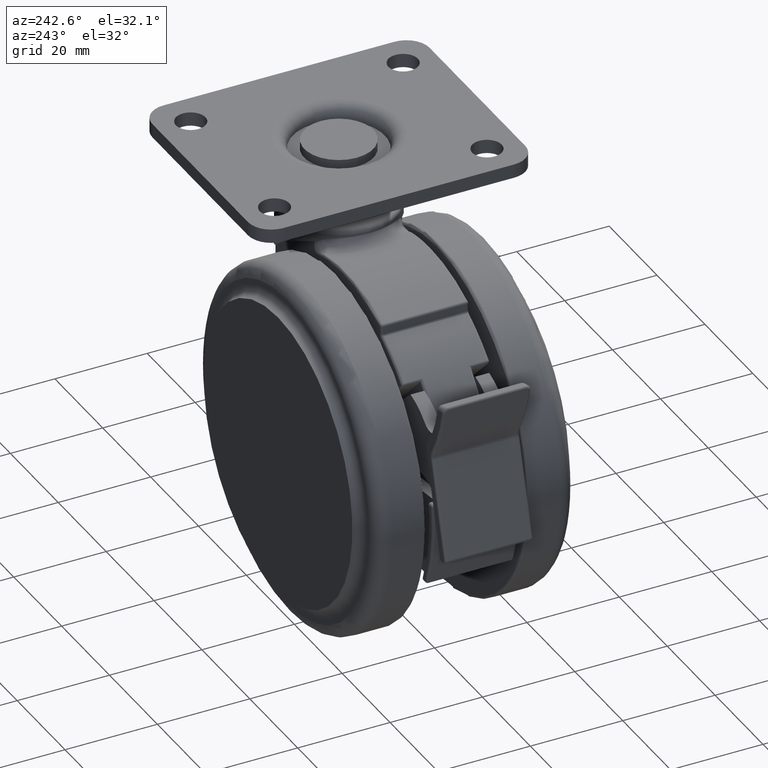
[diagram: clean part render]
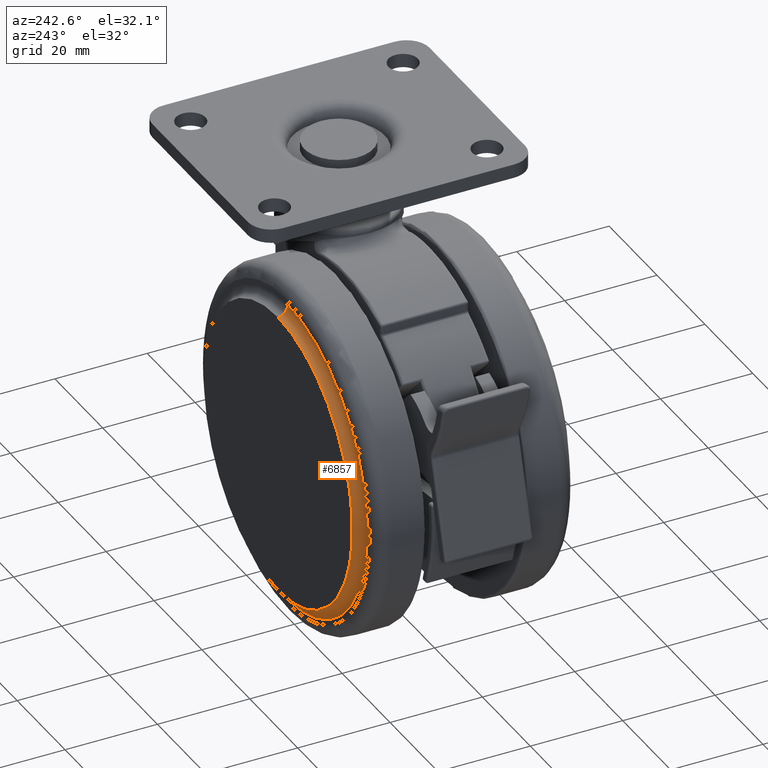
[diagram: same view with one face highlighted and labeled with its STEP entity id]
A machine part, auxiliary view. The second image highlights one B-rep face of the part: STEP entity #6857.
In plain terms, the highlighted toroidal blend (fillet) surface has major radius 33.1916 mm and minor (blend) radius 2.2 mm.
Its self-contained STEP definition (entity closure, byte-faithful):
#445 = VERTEX_POINT ( 'NONE', #6307 ) ;
#514 = DIRECTION ( 'NONE',  ( 1.577021341797096800E-015, 1.000000000000000000, 0.0000000000000000000 ) ) ;
#601 = CARTESIAN_POINT ( 'NONE',  ( -20.00000000000000400, 23.50000000000000000, -9.500000000000001800 ) ) ;
#997 = AXIS2_PLACEMENT_3D ( 'NONE', #2719, #4157, #9071 ) ;
#1126 = ORIENTED_EDGE ( 'NONE', *, *, #1548, .F. ) ;
#1421 = AXIS2_PLACEMENT_3D ( 'NONE', #1949, #6849, #2657 ) ;
#1548 = EDGE_CURVE ( 'NONE', #8712, #445, #3423, .T. ) ;
#1635 = EDGE_LOOP ( 'NONE', ( #4182, #1679, #5387, #1126 ) ) ;
#1679 = ORIENTED_EDGE ( 'NONE', *, *, #3801, .T. ) ;
#1949 = CARTESIAN_POINT ( 'NONE',  ( -20.00000000000000000, 23.50000000000000000, -40.50000000000000000 ) ) ;
#2641 = AXIS2_PLACEMENT_3D ( 'NONE', #8951, #4734, #514 ) ;
#2657 = DIRECTION ( 'NONE',  ( 0.0000000000000000000, 0.0000000000000000000, -1.000000000000000000 ) ) ;
#2719 = CARTESIAN_POINT ( 'NONE',  ( -20.00000000000000000, 23.69163752878125400, -40.50000000000000000 ) ) ;
#3226 = CARTESIAN_POINT ( 'NONE',  ( -20.00000000000000700, 21.50000000000000000, -7.116724942436476900 ) ) ;
#3345 = AXIS2_PLACEMENT_3D ( 'NONE', #7874, #3687, #8597 ) ;
#3423 = CIRCLE ( 'NONE', #3345, 33.38327505756375800 ) ;
#3687 = DIRECTION ( 'NONE',  ( -1.505161159488250100E-015, -1.000000000000000000, 0.0000000000000000000 ) ) ;
#3801 = EDGE_CURVE ( 'NONE', #7392, #7693, #7432, .T. ) ;
#4157 = DIRECTION ( 'NONE',  ( 1.505161159488250100E-015, 1.000000000000000000, 0.0000000000000000000 ) ) ;
#4182 = ORIENTED_EDGE ( 'NONE', *, *, #4254, .F. ) ;
#4254 = EDGE_CURVE ( 'NONE', #7392, #8712, #8309, .T. ) ;
#4734 = DIRECTION ( 'NONE',  ( 1.000000000000000000, -1.505161159488250100E-015, 0.0000000000000000000 ) ) ;
#4856 = DIRECTION ( 'NONE',  ( -1.577021341797096800E-015, -1.000000000000000000, 0.0000000000000000000 ) ) ;
#5050 = CARTESIAN_POINT ( 'NONE',  ( -20.00000000000000400, 23.69163752878125400, -7.308362471218500500 ) ) ;
#5387 = ORIENTED_EDGE ( 'NONE', *, *, #6011, .T. ) ;
#6011 = EDGE_CURVE ( 'NONE', #7693, #445, #9047, .T. ) ;
#6246 = DIRECTION ( 'NONE',  ( -1.000000000000000000, 1.505161159488250100E-015, -1.224646799147353200E-016 ) ) ;
#6307 = CARTESIAN_POINT ( 'NONE',  ( -20.00000000000000400, 21.50000000000000000, -73.88327505756353700 ) ) ;
#6526 = FACE_OUTER_BOUND ( 'NONE', #1635, .T. ) ;
#6849 = DIRECTION ( 'NONE',  ( -1.505161159488250100E-015, -1.000000000000000000, 0.0000000000000000000 ) ) ;
#6857 = ADVANCED_FACE ( 'NONE', ( #6526 ), #8407, .F. ) ;
#7380 = AXIS2_PLACEMENT_3D ( 'NONE', #5050, #6246, #4856 ) ;
#7392 = VERTEX_POINT ( 'NONE', #601 ) ;
#7432 = CIRCLE ( 'NONE', #1421, 31.00000000000000700 ) ;
#7693 = VERTEX_POINT ( 'NONE', #8313 ) ;
#7874 = CARTESIAN_POINT ( 'NONE',  ( -20.00000000000000000, 21.50000000000000000, -40.50000000000000000 ) ) ;
#8309 = CIRCLE ( 'NONE', #7380, 2.200000000000000600 ) ;
#8313 = CARTESIAN_POINT ( 'NONE',  ( -20.00000000000000000, 23.50000000000000000, -71.50000000000001400 ) ) ;
#8407 = TOROIDAL_SURFACE ( 'NONE', #997, 33.19163752878149900, 2.200000000000000200 ) ;
#8597 = DIRECTION ( 'NONE',  ( 0.0000000000000000000, 0.0000000000000000000, -1.000000000000000000 ) ) ;
#8712 = VERTEX_POINT ( 'NONE', #3226 ) ;
#8951 = CARTESIAN_POINT ( 'NONE',  ( -20.00000000000000000, 23.69163752878125400, -73.69163752878149900 ) ) ;
#9047 = CIRCLE ( 'NONE', #2641, 2.200000000000000600 ) ;
#9071 = DIRECTION ( 'NONE',  ( 0.0000000000000000000, 0.0000000000000000000, -1.000000000000000000 ) ) ;